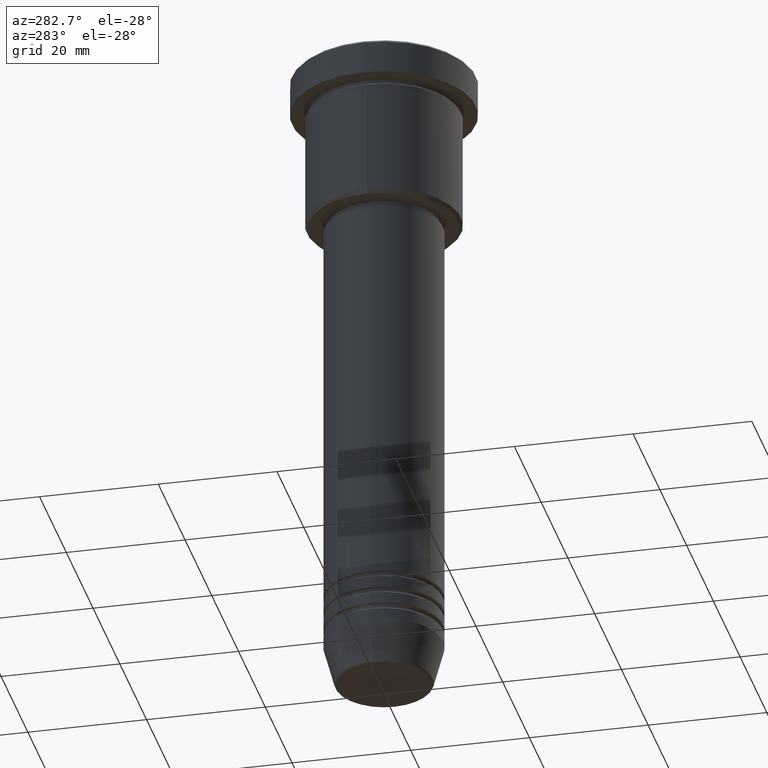
[diagram: clean part render]
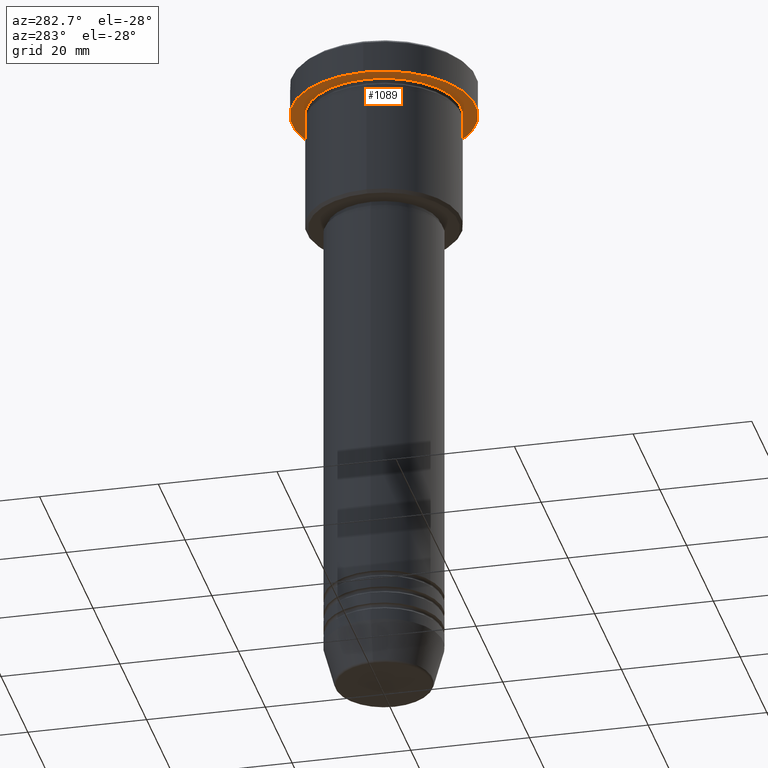
[diagram: same view with one face highlighted and labeled with its STEP entity id]
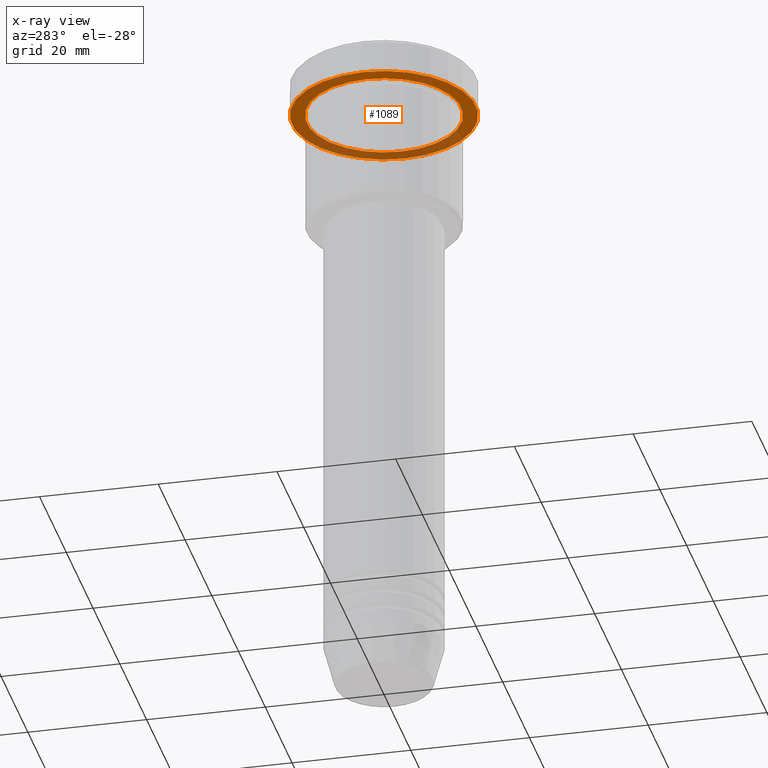
[diagram: x-ray of the same camera — body ghosted, the highlighted face saturated]
A machine part, auxiliary view. The second image highlights one B-rep face of the part: STEP entity #1089.
The next image is the same camera in x-ray: the body ghosted, the highlighted face saturated — about 34% of this face is hidden behind the body in this view.
In plain terms, the highlighted planar face has unit normal (0, 0, -1).
Its self-contained STEP definition (entity closure, byte-faithful):
#38 = DIRECTION ( 'NONE',  ( -1.000000000000000000, 0.000000000000000000, 0.000000000000000000 ) ) ;
#44 = CARTESIAN_POINT ( 'NONE',  ( 13.00000000000000000, 1.592040838891559095E-15, -5.999999999999994671 ) ) ;
#125 = DIRECTION ( 'NONE',  ( -0.000000000000000000, -0.000000000000000000, 1.000000000000000000 ) ) ;
#145 = ORIENTED_EDGE ( 'NONE', *, *, #1013, .F. ) ;
#157 = DIRECTION ( 'NONE',  ( -1.000000000000000000, 0.000000000000000000, -0.000000000000000000 ) ) ;
#162 = VERTEX_POINT ( 'NONE', #44 ) ;
#201 = DIRECTION ( 'NONE',  ( -0.000000000000000000, -0.000000000000000000, 1.000000000000000000 ) ) ;
#205 = ORIENTED_EDGE ( 'NONE', *, *, #666, .F. ) ;
#222 = EDGE_CURVE ( 'NONE', #162, #1005, #525, .T. ) ;
#231 = PLANE ( 'NONE',  #791 ) ;
#240 = DIRECTION ( 'NONE',  ( -0.000000000000000000, -0.000000000000000000, 1.000000000000000000 ) ) ;
#324 = CARTESIAN_POINT ( 'NONE',  ( 0.000000000000000000, 0.000000000000000000, -5.999999999999995559 ) ) ;
#325 = EDGE_LOOP ( 'NONE', ( #205, #145 ) ) ;
#416 = CARTESIAN_POINT ( 'NONE',  ( -13.00000000000000000, 0.000000000000000000, -5.999999999999994671 ) ) ;
#420 = EDGE_LOOP ( 'NONE', ( #1109, #779 ) ) ;
#468 = CARTESIAN_POINT ( 'NONE',  ( 0.000000000000000000, 0.000000000000000000, -5.999999999999995559 ) ) ;
#507 = DIRECTION ( 'NONE',  ( 0.000000000000000000, 0.000000000000000000, -1.000000000000000000 ) ) ;
#525 = CIRCLE ( 'NONE', #1143, 13.00000000000000000 ) ;
#563 = DIRECTION ( 'NONE',  ( -1.000000000000000000, 0.000000000000000000, 0.000000000000000000 ) ) ;
#598 = DIRECTION ( 'NONE',  ( -0.000000000000000000, -0.000000000000000000, 1.000000000000000000 ) ) ;
#609 = DIRECTION ( 'NONE',  ( 1.000000000000000000, 0.000000000000000000, 0.000000000000000000 ) ) ;
#631 = AXIS2_PLACEMENT_3D ( 'NONE', #468, #201, #563 ) ;
#633 = CIRCLE ( 'NONE', #673, 15.50000000000000000 ) ;
#637 = EDGE_CURVE ( 'NONE', #1005, #162, #807, .T. ) ;
#666 = EDGE_CURVE ( 'NONE', #813, #900, #891, .T. ) ;
#673 = AXIS2_PLACEMENT_3D ( 'NONE', #971, #598, #609 ) ;
#677 = DIRECTION ( 'NONE',  ( 1.000000000000000000, 0.000000000000000000, 0.000000000000000000 ) ) ;
#680 = FACE_BOUND ( 'NONE', #420, .T. ) ;
#779 = ORIENTED_EDGE ( 'NONE', *, *, #222, .T. ) ;
#788 = FACE_OUTER_BOUND ( 'NONE', #325, .T. ) ;
#791 = AXIS2_PLACEMENT_3D ( 'NONE', #1051, #507, #157 ) ;
#807 = CIRCLE ( 'NONE', #631, 13.00000000000000000 ) ;
#813 = VERTEX_POINT ( 'NONE', #1004 ) ;
#891 = CIRCLE ( 'NONE', #1018, 15.50000000000000000 ) ;
#900 = VERTEX_POINT ( 'NONE', #927 ) ;
#927 = CARTESIAN_POINT ( 'NONE',  ( -15.50000000000000000, 1.898202538678397557E-15, -5.999999999999995559 ) ) ;
#939 = CARTESIAN_POINT ( 'NONE',  ( 0.000000000000000000, 0.000000000000000000, -5.999999999999995559 ) ) ;
#971 = CARTESIAN_POINT ( 'NONE',  ( 0.000000000000000000, 0.000000000000000000, -5.999999999999995559 ) ) ;
#1004 = CARTESIAN_POINT ( 'NONE',  ( 15.50000000000000000, 0.000000000000000000, -5.999999999999995559 ) ) ;
#1005 = VERTEX_POINT ( 'NONE', #416 ) ;
#1013 = EDGE_CURVE ( 'NONE', #900, #813, #633, .T. ) ;
#1018 = AXIS2_PLACEMENT_3D ( 'NONE', #324, #240, #677 ) ;
#1051 = CARTESIAN_POINT ( 'NONE',  ( 0.000000000000000000, 15.50000000000000000, -5.999999999999995559 ) ) ;
#1089 = ADVANCED_FACE ( 'NONE', ( #680, #788 ), #231, .T. ) ;
#1109 = ORIENTED_EDGE ( 'NONE', *, *, #637, .T. ) ;
#1143 = AXIS2_PLACEMENT_3D ( 'NONE', #939, #125, #38 ) ;